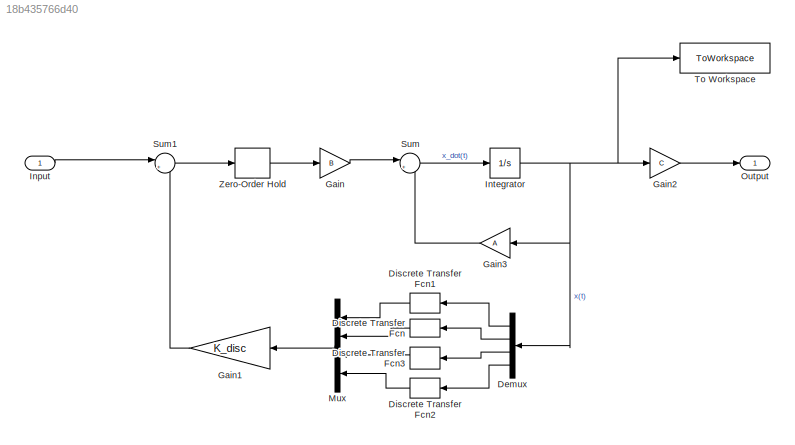
MODEL slx_18b435766d40
KIND model
CONFIG AbsTol = auto
CONFIG EnableMultiTasking = off
CONFIG FixedStep = auto
CONFIG MaxStep = auto
CONFIG MinStep = auto
CONFIG RelTol = 1e-3
CONFIG SampleTimeConstraint = Unconstrained
CONFIG SolverName = VariableStepAuto
CONFIG StartTime = 0.0
CONFIG StopTime = 200
BLOCK [Demux] Demux
  NameLocation = top
  Ports = [1, 4]
BLOCK [DiscreteTransferFcn] Discrete Transfer Fcn
  Denominator = 1
  InputPortMap = u0
  NameLocation = top
  Numerator = 1
  Ports = [1, 1]
  SampleTime = Ts
BLOCK [DiscreteTransferFcn] Discrete Transfer Fcn1
  Denominator = 1
  InputPortMap = u0
  NameLocation = top
  Numerator = 1
  Ports = [1, 1]
  SampleTime = Ts
BLOCK [DiscreteTransferFcn] Discrete Transfer Fcn2
  Denominator = 1
  InputPortMap = u0
  NameLocation = top
  Numerator = 1
  Ports = [1, 1]
  SampleTime = Ts
BLOCK [DiscreteTransferFcn] Discrete Transfer Fcn3
  Denominator = 1
  InputPortMap = u0
  NameLocation = top
  Numerator = 1
  Ports = [1, 1]
  SampleTime = Ts
BLOCK [Gain] Gain
  Gain = B
  Multiplication = Matrix(K*u)
BLOCK [Gain] Gain1
  Gain = K_disc
  Multiplication = Matrix(K*u)
  NameLocation = top
BLOCK [Gain] Gain2
  Gain = C
  Multiplication = Matrix(K*u)
BLOCK [Gain] Gain3
  Gain = A
  Multiplication = Matrix(K*u)
  NameLocation = top
BLOCK [Inport] Input
  PortDimensions = 2
BLOCK [Integrator] Integrator
  Ports = [1, 1]
BLOCK [Mux] Mux
  DisplayOption = bar
  NameLocation = top
  Ports = [4, 1]
BLOCK [Outport] Output
BLOCK [Sum] Sum
  Inputs = |++
  Ports = [2, 1]
BLOCK [Sum] Sum1
  Inputs = |+-
  Ports = [2, 1]
BLOCK [ToWorkspace] To Workspace
  FixptAsFi = on
  MaxDataPoints = inf
  Ports = [1]
  SampleTime = -1
  SaveFormat = Timeseries
  VariableName = simout
BLOCK [ZeroOrderHold] Zero-Order Hold
  SampleTime = Ts
LINE Demux:1 -> Discrete Transfer Fcn1:1
LINE Demux:2 -> Discrete Transfer Fcn:1
LINE Demux:3 -> Discrete Transfer Fcn3:1
LINE Demux:4 -> Discrete Transfer Fcn2:1
LINE Discrete Transfer Fcn1:1 -> Mux:1
LINE Discrete Transfer Fcn2:1 -> Mux:4
LINE Discrete Transfer Fcn3:1 -> Mux:3
LINE Discrete Transfer Fcn:1 -> Mux:2
LINE Gain1:1 -> Sum1:2
LINE Gain2:1 -> Output:1
LINE Gain3:1 -> Sum:2
LINE Gain:1 -> Sum:1
LINE Input:1 -> Sum1:1
NET Integrator:1 -> Demux:1, Gain2:1, Gain3:1, To Workspace:1
LINE Mux:1 -> Gain1:1
LINE Sum1:1 -> Zero-Order Hold:1
LINE Sum:1 -> Integrator:1
LINE Zero-Order Hold:1 -> Gain:1
note: NET lines group one-source signal fan-out (src -> all destinations, sorted); 1:1 wires keep LINE
